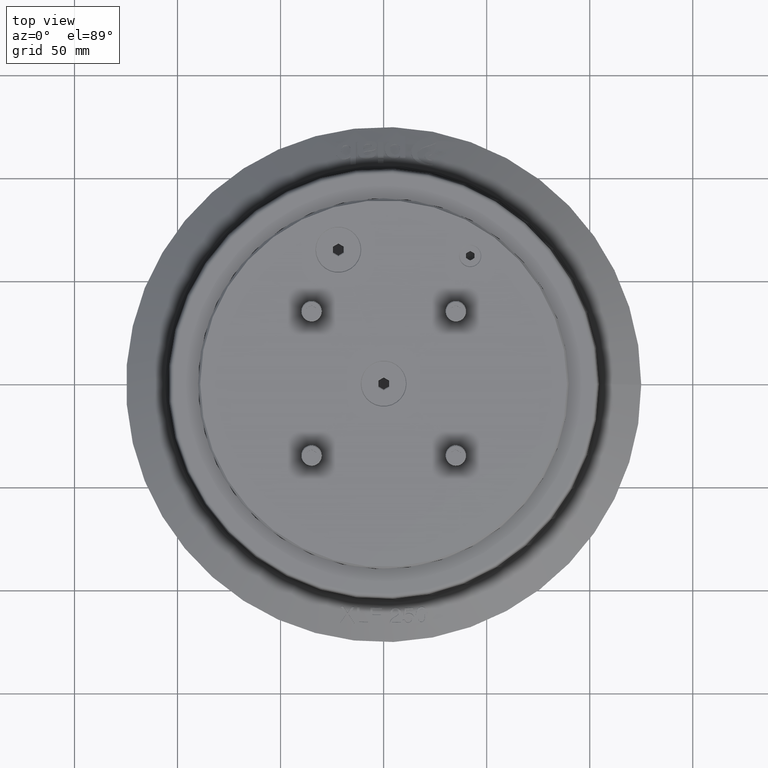
[diagram: clean part render]
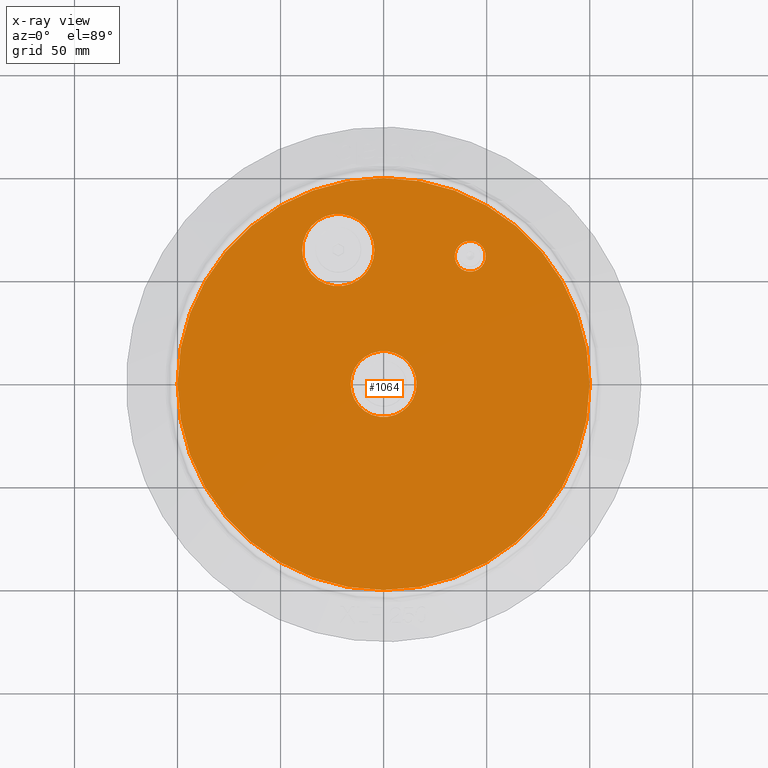
[diagram: x-ray — body ghosted, one internal face saturated and labeled with its STEP entity id]
A machine part, top view, then the same camera in x-ray: the body is ghosted and one INTERNAL B-rep face — a face not visible from any outside direction — is saturated and labeled: STEP entity #1064.
In plain terms, the highlighted planar face has unit normal (0, 0, -1).
Its self-contained STEP definition (entity closure, byte-faithful):
#1064 = ADVANCED_FACE( '', ( #2684, #2685, #2686, #2687 ), #2688, .F. );
#2684 = FACE_BOUND( '', #5236, .T. );
#2685 = FACE_OUTER_BOUND( '', #5237, .T. );
#2686 = FACE_BOUND( '', #5238, .T. );
#2687 = FACE_BOUND( '', #5239, .T. );
#2688 = PLANE( '', #5240 );
#5236 = EDGE_LOOP( '', ( #10074 ) );
#5237 = EDGE_LOOP( '', ( #10075 ) );
#5238 = EDGE_LOOP( '', ( #10076 ) );
#5239 = EDGE_LOOP( '', ( #10077 ) );
#5240 = AXIS2_PLACEMENT_3D( '', #10078, #10079, #10080 );
#10074 = ORIENTED_EDGE( '', *, *, #15386, .T. );
#10075 = ORIENTED_EDGE( '', *, *, #15387, .T. );
#10076 = ORIENTED_EDGE( '', *, *, #15388, .T. );
#10077 = ORIENTED_EDGE( '', *, *, #15389, .T. );
#10078 = CARTESIAN_POINT( '', ( 100.000000000000, 0.000000000000000, -1.04083408558608E-014 ) );
#10079 = DIRECTION( '', ( 0.000000000000000, 0.000000000000000, -1.00000000000000 ) );
#10080 = DIRECTION( '', ( -1.00000000000000, 0.000000000000000, 0.000000000000000 ) );
#15386 = EDGE_CURVE( '', #17871, #17871, #17872, .T. );
#15387 = EDGE_CURVE( '', #17873, #17873, #17874, .T. );
#15388 = EDGE_CURVE( '', #17875, #17875, #17876, .T. );
#15389 = EDGE_CURVE( '', #17877, #17877, #17878, .T. );
#17871 = VERTEX_POINT( '', #21537 );
#17872 = CIRCLE( '', #21538, 7.50000000000000 );
#17873 = VERTEX_POINT( '', #21539 );
#17874 = CIRCLE( '', #21540, 100.000000000000 );
#17875 = VERTEX_POINT( '', #21541 );
#17876 = CIRCLE( '', #21542, 17.5000000000000 );
#17877 = VERTEX_POINT( '', #21543 );
#17878 = CIRCLE( '', #21544, 16.0000000000000 );
#21537 = CARTESIAN_POINT( '', ( 49.5000000000000, 62.0000000000000, 2.65250592415395E-016 ) );
#21538 = AXIS2_PLACEMENT_3D( '', #27947, #27948, #27949 );
#21539 = CARTESIAN_POINT( '', ( 100.000000000000, 0.000000000000000, -1.04083408558608E-014 ) );
#21540 = AXIS2_PLACEMENT_3D( '', #27950, #27951, #27952 );
#21541 = CARTESIAN_POINT( '', ( -4.50000000000000, 65.0000000000000, 2.65250592415395E-016 ) );
#21542 = AXIS2_PLACEMENT_3D( '', #27953, #27954, #27955 );
#21543 = CARTESIAN_POINT( '', ( 16.0000000000000, 0.000000000000000, -1.04083408558608E-014 ) );
#21544 = AXIS2_PLACEMENT_3D( '', #27956, #27957, #27958 );
#27947 = CARTESIAN_POINT( '', ( 42.0000000000000, 62.0000000000000, 2.65250592415395E-016 ) );
#27948 = DIRECTION( '', ( 0.000000000000000, 0.000000000000000, -1.00000000000000 ) );
#27949 = DIRECTION( '', ( 1.00000000000000, 0.000000000000000, 0.000000000000000 ) );
#27950 = CARTESIAN_POINT( '', ( 0.000000000000000, 0.000000000000000, -1.04083408558608E-014 ) );
#27951 = DIRECTION( '', ( 0.000000000000000, 0.000000000000000, 1.00000000000000 ) );
#27952 = DIRECTION( '', ( 1.00000000000000, 0.000000000000000, 0.000000000000000 ) );
#27953 = CARTESIAN_POINT( '', ( -22.0000000000000, 65.0000000000000, 2.65250592415395E-016 ) );
#27954 = DIRECTION( '', ( 0.000000000000000, 0.000000000000000, -1.00000000000000 ) );
#27955 = DIRECTION( '', ( 1.00000000000000, 0.000000000000000, 0.000000000000000 ) );
#27956 = CARTESIAN_POINT( '', ( 3.30643715532042E-015, 0.000000000000000, -1.04083408558608E-014 ) );
#27957 = DIRECTION( '', ( 0.000000000000000, 0.000000000000000, -1.00000000000000 ) );
#27958 = DIRECTION( '', ( 1.00000000000000, 0.000000000000000, 0.000000000000000 ) );